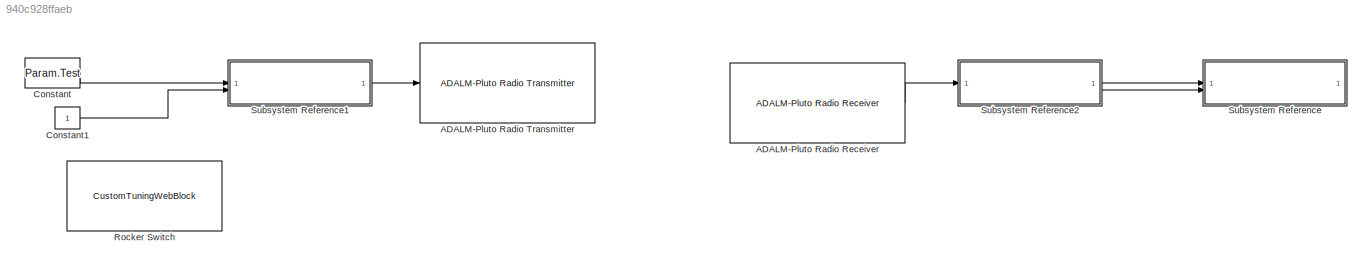
MODEL slx_940c928ffaeb
KIND model
CONFIG AbsTol = auto
CONFIG EnableMultiTasking = off
CONFIG FixedStep = auto
CONFIG MaxStep = auto
CONFIG MinStep = auto
CONFIG RelTol = 1e-3
CONFIG SampleTimeConstraint = Unconstrained
CONFIG SolverName = FixedStepAuto
CONFIG StartTime = 0.0
CONFIG StopTime = inf
BLOCK [Reference] ADALM-Pluto Radio Receiver  REF=plutoradiolib/ADALM-Pluto Radio
Receiver
  SourceBlock = plutoradiolib/ADALM-Pluto Radio\nReceiver
  SourceType = comm.SDRRxPluto
BLOCK [Reference] ADALM-Pluto Radio Transmitter  REF=plutoradiolib/ADALM-Pluto Radio
Transmitter
  SourceBlock = plutoradiolib/ADALM-Pluto Radio\nTransmitter
  SourceType = comm.SDRTxPluto
BLOCK [Constant] Constant
  Value = Param.Test
  VectorParams1D = off
BLOCK [Constant] Constant1
BLOCK [CustomTuningWebBlock] Rocker Switch
  Configuration = {"components":[{"name":"CustomSwitchStateComponent","settings":{"position":[0,0,1,1],"states":[{"HitRegion":{"position":[0,0,0.5,1]},"Image":{"position":[0.13,0,1,0.75],"size":[1,0.75],"src":"data:image\/svg+xml;base64,PHN2ZyB4bWxucz0iaHR0cDovL3d3dy53My5vcmcvMjAwMC9zdmciIHhtbG5zOnhsaW5rPSJodHRwOi8vd3d3LnczLm9yZy8xOTk5L3hsaW5rIiB2aWV3Qm94PSIwIDAgNzUgMjQuOCI+PGRlZnM+PHN0eWxlPi5jbHMtMXtmaWxsOnVybCgjc...<+8958ch>
  LabelPosition = Hide
  ShowInitialText = on
BLOCK [SubSystem] Subsystem Reference
  ReferencedSubsystem = test_received_frames
BLOCK [SubSystem] Subsystem Reference1
  ReferencedSubsystem = bare_trans_QPSK
BLOCK [SubSystem] Subsystem Reference2
  ReferencedSubsystem = bare_recv_QPSK
LINE ADALM-Pluto Radio Receiver:1 -> Subsystem Reference2:1
LINE Constant1:1 -> Subsystem Reference1:2
LINE Constant:1 -> Subsystem Reference1:1
LINE Subsystem Reference1:1 -> ADALM-Pluto Radio Transmitter:1
LINE Subsystem Reference2:1 -> Subsystem Reference:1
LINE Subsystem Reference2:2 -> Subsystem Reference:2
